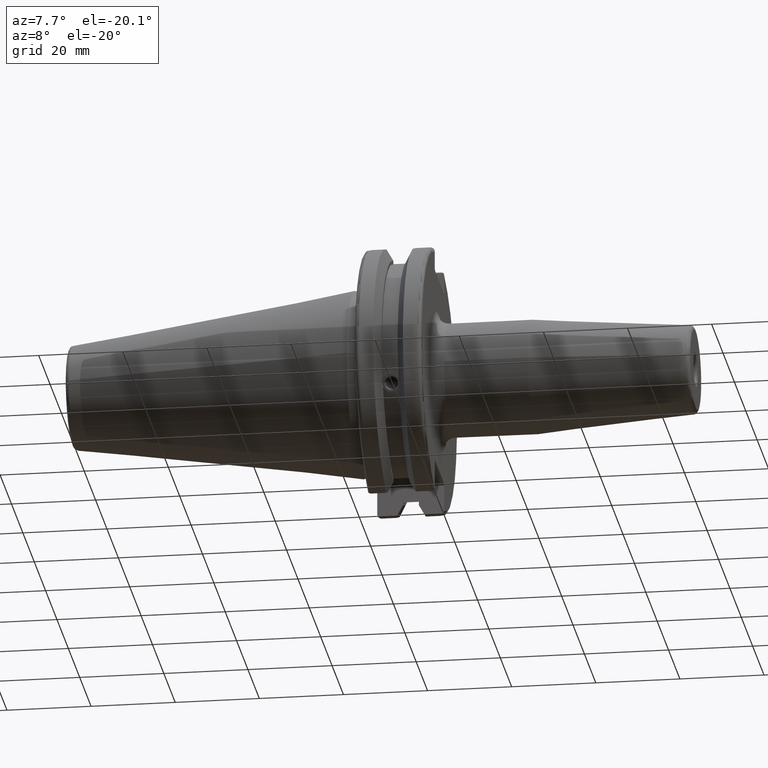
[diagram: clean part render]
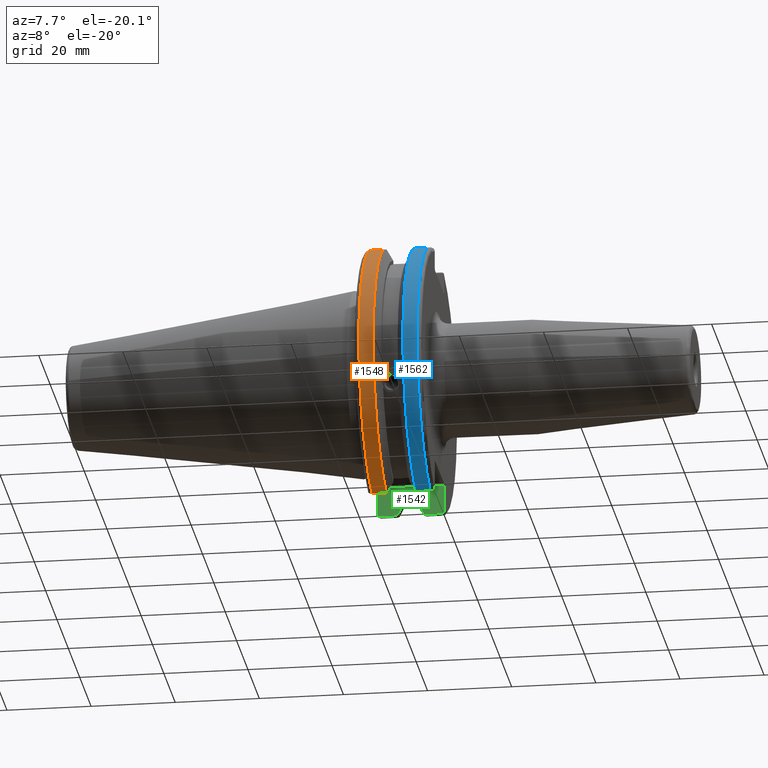
[diagram: same view with three faces highlighted in distinct colors, each labeled with its STEP entity id]
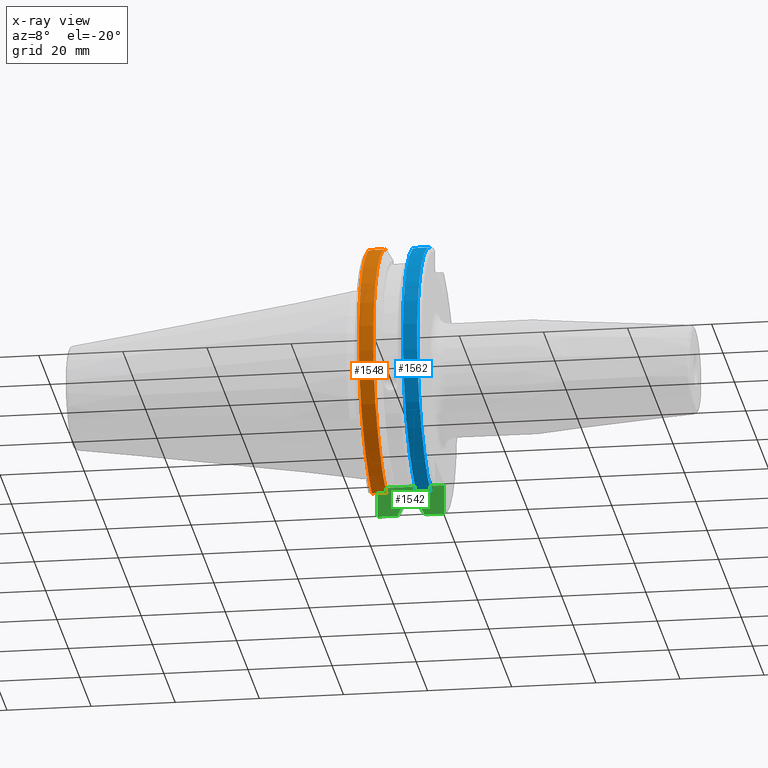
[diagram: x-ray of the same camera — body ghosted, the three highlighted faces saturated]
A machine part, auxiliary view with three faces highlighted in distinct colors.
The next image is the same camera in x-ray (body ghosted, the three faces saturated) — at least one of them is partly hidden behind the body in this view.
Their STEP definitions:

[orange] entity #1548 — the highlighted cylindrical surface (partial cylindrical patch) has radius 31.75 mm, axis along (1, 0, 0).
#163=LINE('',#2899,#257);
#164=LINE('',#2905,#258);
#257=VECTOR('',#2117,10.);
#258=VECTOR('',#2120,10.);
#301=CYLINDRICAL_SURFACE('',#1734,31.75);
#415=FACE_OUTER_BOUND('',#516,.T.);
#516=EDGE_LOOP('',(#1329,#1330,#1331,#1332));
#610=CIRCLE('',#1732,31.75);
#611=CIRCLE('',#1735,31.75);
#762=VERTEX_POINT('',#2878);
#763=VERTEX_POINT('',#2887);
#764=VERTEX_POINT('',#2898);
#765=VERTEX_POINT('',#2904);
#967=EDGE_CURVE('',#762,#763,#610,.T.);
#969=EDGE_CURVE('',#763,#764,#163,.T.);
#971=EDGE_CURVE('',#765,#762,#164,.T.);
#972=EDGE_CURVE('',#764,#765,#611,.T.);
#1329=ORIENTED_EDGE('',*,*,#967,.F.);
#1330=ORIENTED_EDGE('',*,*,#971,.F.);
#1331=ORIENTED_EDGE('',*,*,#972,.F.);
#1332=ORIENTED_EDGE('',*,*,#969,.F.);
#1548=ADVANCED_FACE('',(#415),#301,.T.);
#1732=AXIS2_PLACEMENT_3D('',#2888,#2113,#2114);
#1734=AXIS2_PLACEMENT_3D('',#2903,#2118,#2119);
#1735=AXIS2_PLACEMENT_3D('',#2906,#2121,#2122);
#2113=DIRECTION('center_axis',(-1.,0.,0.));
#2114=DIRECTION('ref_axis',(0.,-1.,1.60812264967664E-16));
#2117=DIRECTION('',(1.,0.,0.));
#2118=DIRECTION('center_axis',(1.,0.,0.));
#2119=DIRECTION('ref_axis',(0.,-1.,1.22464679914735E-16));
#2120=DIRECTION('',(-1.,0.,0.));
#2121=DIRECTION('center_axis',(1.,0.,0.));
#2122=DIRECTION('ref_axis',(0.,0.,-1.));
#2878=CARTESIAN_POINT('',(4.175,-8.67204822802685,-30.5427254764662));
#2887=CARTESIAN_POINT('',(4.175,-8.67204822802685,30.5427254764662));
#2888=CARTESIAN_POINT('Origin',(4.175,0.,0.));
#2898=CARTESIAN_POINT('',(7.60793323092436,-8.67204822802685,30.5427254764662));
#2899=CARTESIAN_POINT('',(5.39146661546218,-8.67204822802685,30.5427254764662));
#2903=CARTESIAN_POINT('Origin',(5.39146661546218,0.,0.));
#2904=CARTESIAN_POINT('',(7.60793323092436,-8.67204822802685,-30.5427254764662));
#2905=CARTESIAN_POINT('',(5.39146661546218,-8.67204822802685,-30.5427254764662));
#2906=CARTESIAN_POINT('Origin',(7.60793323092436,0.,0.));

[blue] entity #1562 — the highlighted cylindrical surface (partial cylindrical patch) has radius 31.75 mm, axis along (1, 0, 0).
#177=LINE('',#2979,#271);
#178=LINE('',#2981,#272);
#271=VECTOR('',#2175,10.);
#272=VECTOR('',#2178,10.);
#302=CYLINDRICAL_SURFACE('',#1756,31.75);
#429=FACE_OUTER_BOUND('',#531,.T.);
#531=EDGE_LOOP('',(#1395,#1396,#1397,#1398));
#583=CIRCLE('',#1668,31.75);
#609=CIRCLE('',#1728,31.75);
#688=VERTEX_POINT('',#2531);
#689=VERTEX_POINT('',#2535);
#753=VERTEX_POINT('',#2822);
#754=VERTEX_POINT('',#2831);
#861=EDGE_CURVE('',#689,#688,#583,.T.);
#951=EDGE_CURVE('',#753,#754,#609,.T.);
#997=EDGE_CURVE('',#754,#688,#177,.T.);
#998=EDGE_CURVE('',#689,#753,#178,.T.);
#1395=ORIENTED_EDGE('',*,*,#951,.F.);
#1396=ORIENTED_EDGE('',*,*,#998,.F.);
#1397=ORIENTED_EDGE('',*,*,#861,.T.);
#1398=ORIENTED_EDGE('',*,*,#997,.F.);
#1562=ADVANCED_FACE('',(#429),#302,.T.);
#1668=AXIS2_PLACEMENT_3D('',#2536,#1942,#1943);
#1728=AXIS2_PLACEMENT_3D('',#2832,#2096,#2097);
#1756=AXIS2_PLACEMENT_3D('',#2980,#2176,#2177);
#1942=DIRECTION('center_axis',(1.,0.,0.));
#1943=DIRECTION('ref_axis',(0.,0.,-1.));
#2096=DIRECTION('center_axis',(1.,0.,0.));
#2097=DIRECTION('ref_axis',(0.,-1.,1.60812264967664E-16));
#2175=DIRECTION('',(-1.,0.,0.));
#2176=DIRECTION('center_axis',(1.,0.,0.));
#2177=DIRECTION('ref_axis',(0.,-1.,1.22464679914735E-16));
#2178=DIRECTION('',(1.,0.,0.));
#2531=CARTESIAN_POINT('',(14.6602667690756,-8.67204822802686,-30.5427254764662));
#2535=CARTESIAN_POINT('',(14.6602667690756,-8.67204822802685,30.5427254764662));
#2536=CARTESIAN_POINT('Origin',(14.6602667690756,0.,0.));
#2822=CARTESIAN_POINT('',(18.05,-8.67204822802685,30.5427254764662));
#2831=CARTESIAN_POINT('',(18.05,-8.67204822802686,-30.5427254764662));
#2832=CARTESIAN_POINT('Origin',(18.05,0.,0.));
#2979=CARTESIAN_POINT('',(16.8551333845378,-8.67204822802686,-30.5427254764662));
#2980=CARTESIAN_POINT('Origin',(16.8551333845378,0.,0.));
#2981=CARTESIAN_POINT('',(16.8551333845378,-8.67204822802685,30.5427254764662));

[green] entity #1542 — the highlighted planar face has unit normal (-0, 1, 0).
#19=(
BOUNDED_CURVE()
B_SPLINE_CURVE(2,(#2663,#2664,#2665),.UNSPECIFIED.,.F.,.F.)
B_SPLINE_CURVE_WITH_KNOTS((3,3),(0.,0.276549142796136),.UNSPECIFIED.)
CURVE()
GEOMETRIC_REPRESENTATION_ITEM()
RATIONAL_B_SPLINE_CURVE((1.,1.00095203903316,1.00031614444813))
REPRESENTATION_ITEM('')
);
#24=(
BOUNDED_CURVE()
B_SPLINE_CURVE(2,(#2804,#2805,#2806),.UNSPECIFIED.,.F.,.F.)
B_SPLINE_CURVE_WITH_KNOTS((3,3),(0.0550586467393769,0.331607789535852),
 .UNSPECIFIED.)
CURVE()
GEOMETRIC_REPRESENTATION_ITEM()
RATIONAL_B_SPLINE_CURVE((1.00031614444922,1.00095203903643,1.))
REPRESENTATION_ITEM('')
);
#64=B_SPLINE_CURVE_WITH_KNOTS('',3,(#2761,#2762,#2763,#2764,#2765,#2766),
 .UNSPECIFIED.,.F.,.F.,(4,2,4),(0.452741154494497,0.491581665024871,0.505824174364157),
 .UNSPECIFIED.);
#67=B_SPLINE_CURVE_WITH_KNOTS('',3,(#2797,#2798,#2799,#2800,#2801,#2802),
 .UNSPECIFIED.,.F.,.F.,(4,2,4),(0.0977210450333169,0.111963554372601,0.150804064902975),
 .UNSPECIFIED.);
#104=LINE('',#2308,#198);
#131=LINE('',#2684,#225);
#132=LINE('',#2688,#226);
#133=LINE('',#2692,#227);
#144=LINE('',#2740,#238);
#150=LINE('',#2788,#244);
#152=LINE('',#2795,#246);
#153=LINE('',#2803,#247);
#198=VECTOR('',#1850,10.);
#225=VECTOR('',#2013,10.);
#226=VECTOR('',#2018,10.);
#227=VECTOR('',#2023,10.);
#238=VECTOR('',#2072,10.);
#244=VECTOR('',#2088,10.);
#246=VECTOR('',#2092,10.);
#247=VECTOR('',#2093,10.);
#339=PLANE('',#1726);
#409=FACE_OUTER_BOUND('',#510,.T.);
#510=EDGE_LOOP('',(#1277,#1278,#1279,#1280,#1281,#1282,#1283,#1284,#1285,
#1286,#1287,#1288));
#642=VERTEX_POINT('',#2286);
#652=VERTEX_POINT('',#2306);
#713=VERTEX_POINT('',#2660);
#714=VERTEX_POINT('',#2662);
#719=VERTEX_POINT('',#2682);
#720=VERTEX_POINT('',#2686);
#721=VERTEX_POINT('',#2690);
#738=VERTEX_POINT('',#2737);
#739=VERTEX_POINT('',#2739);
#745=VERTEX_POINT('',#2760);
#748=VERTEX_POINT('',#2787);
#750=VERTEX_POINT('',#2796);
#812=EDGE_CURVE('',#652,#642,#104,.T.);
#896=EDGE_CURVE('',#713,#714,#19,.T.);
#903=EDGE_CURVE('',#719,#713,#131,.T.);
#905=EDGE_CURVE('',#720,#719,#132,.T.);
#907=EDGE_CURVE('',#721,#720,#133,.T.);
#929=EDGE_CURVE('',#738,#739,#144,.T.);
#937=EDGE_CURVE('',#642,#745,#64,.T.);
#941=EDGE_CURVE('',#745,#748,#150,.T.);
#944=EDGE_CURVE('',#739,#652,#152,.T.);
#945=EDGE_CURVE('',#750,#738,#67,.T.);
#946=EDGE_CURVE('',#714,#750,#153,.T.);
#947=EDGE_CURVE('',#748,#721,#24,.T.);
#1277=ORIENTED_EDGE('',*,*,#937,.F.);
#1278=ORIENTED_EDGE('',*,*,#812,.F.);
#1279=ORIENTED_EDGE('',*,*,#944,.F.);
#1280=ORIENTED_EDGE('',*,*,#929,.F.);
#1281=ORIENTED_EDGE('',*,*,#945,.F.);
#1282=ORIENTED_EDGE('',*,*,#946,.F.);
#1283=ORIENTED_EDGE('',*,*,#896,.F.);
#1284=ORIENTED_EDGE('',*,*,#903,.F.);
#1285=ORIENTED_EDGE('',*,*,#905,.F.);
#1286=ORIENTED_EDGE('',*,*,#907,.F.);
#1287=ORIENTED_EDGE('',*,*,#947,.F.);
#1288=ORIENTED_EDGE('',*,*,#941,.F.);
#1542=ADVANCED_FACE('',(#409),#339,.F.);
#1726=AXIS2_PLACEMENT_3D('',#2794,#2090,#2091);
#1850=DIRECTION('',(0.,0.,-1.));
#2013=DIRECTION('',(0.,0.,-1.));
#2018=DIRECTION('',(-1.,0.,0.));
#2023=DIRECTION('',(0.,0.,1.));
#2072=DIRECTION('',(0.,0.,1.));
#2088=DIRECTION('',(-1.,-1.31581988103722E-16,0.));
#2090=DIRECTION('center_axis',(-1.31581988103722E-16,1.,0.));
#2091=DIRECTION('ref_axis',(1.,1.31581988103722E-16,0.));
#2092=DIRECTION('',(1.,1.31581988103722E-16,0.));
#2093=DIRECTION('',(-1.,-1.31581988103722E-16,0.));
#2286=CARTESIAN_POINT('',(19.05,8.19,-29.6392712461019));
#2306=CARTESIAN_POINT('',(19.05,8.19,-23.1));
#2308=CARTESIAN_POINT('',(19.05,8.19,-11.3));
#2660=CARTESIAN_POINT('',(9.2191,8.19,-27.7771386827498));
#2662=CARTESIAN_POINT('',(7.88668530351257,8.19,-30.1755016258903));
#2663=CARTESIAN_POINT('Ctrl Pts',(9.2191,8.19,-27.7771386827498));
#2664=CARTESIAN_POINT('Ctrl Pts',(8.58046356152393,8.19,-28.9303689539705));
#2665=CARTESIAN_POINT('Ctrl Pts',(7.88668530351257,8.19,-30.1755016258903));
#2682=CARTESIAN_POINT('',(9.2191,8.19,-26.932255754021));
#2684=CARTESIAN_POINT('',(9.2191,8.18999999999999,-11.3));
#2686=CARTESIAN_POINT('',(13.0491,8.19,-26.932255754021));
#2688=CARTESIAN_POINT('',(11.1341,8.19,-26.932255754021));
#2690=CARTESIAN_POINT('',(13.0491,8.19,-27.7771386827498));
#2692=CARTESIAN_POINT('',(13.0491,8.19,-11.3));
#2737=CARTESIAN_POINT('',(3.175,8.18999999999999,-29.6392712461019));
#2739=CARTESIAN_POINT('',(3.175,8.18999999999999,-23.1));
#2740=CARTESIAN_POINT('',(3.175,8.18999999999999,-11.3));
#2760=CARTESIAN_POINT('',(18.9058722749097,8.19,-30.1755016258903));
#2761=CARTESIAN_POINT('Ctrl Pts',(19.05,8.19,-29.6392712461019));
#2762=CARTESIAN_POINT('Ctrl Pts',(19.05,8.19,-29.7687396145364));
#2763=CARTESIAN_POINT('Ctrl Pts',(19.0204855670831,8.19,-29.9212724384851));
#2764=CARTESIAN_POINT('Ctrl Pts',(18.9539643471756,8.19,-30.0852355256475));
#2765=CARTESIAN_POINT('Ctrl Pts',(18.9318163728133,8.19,-30.131014531546));
#2766=CARTESIAN_POINT('Ctrl Pts',(18.9058722749097,8.19,-30.1755016258903));
#2787=CARTESIAN_POINT('',(14.3815146964874,8.19,-30.1755016258903));
#2788=CARTESIAN_POINT('',(16.8551333845378,8.19,-30.1755016258903));
#2794=CARTESIAN_POINT('Origin',(3.175,8.19,-22.6));
#2795=CARTESIAN_POINT('',(9.44125,8.19,-23.1));
#2796=CARTESIAN_POINT('',(3.31912772509028,8.19,-30.1755016258903));
#2797=CARTESIAN_POINT('Ctrl Pts',(3.31912772509028,8.19,-30.1755016258903));
#2798=CARTESIAN_POINT('Ctrl Pts',(3.29318362718666,8.19,-30.131014531546));
#2799=CARTESIAN_POINT('Ctrl Pts',(3.27103565282437,8.19,-30.0852355256475));
#2800=CARTESIAN_POINT('Ctrl Pts',(3.20451443291695,8.19,-29.9212724384851));
#2801=CARTESIAN_POINT('Ctrl Pts',(3.175,8.19,-29.7687396145364));
#2802=CARTESIAN_POINT('Ctrl Pts',(3.175,8.19,-29.6392712461019));
#2803=CARTESIAN_POINT('',(5.39146661546218,8.19,-30.1755016258903));
#2804=CARTESIAN_POINT('Ctrl Pts',(14.3815146964874,8.18999999999999,-30.1755016258903));
#2805=CARTESIAN_POINT('Ctrl Pts',(13.687736438474,8.19,-28.9303689539668));
#2806=CARTESIAN_POINT('Ctrl Pts',(13.0491,8.19,-27.7771386827498));